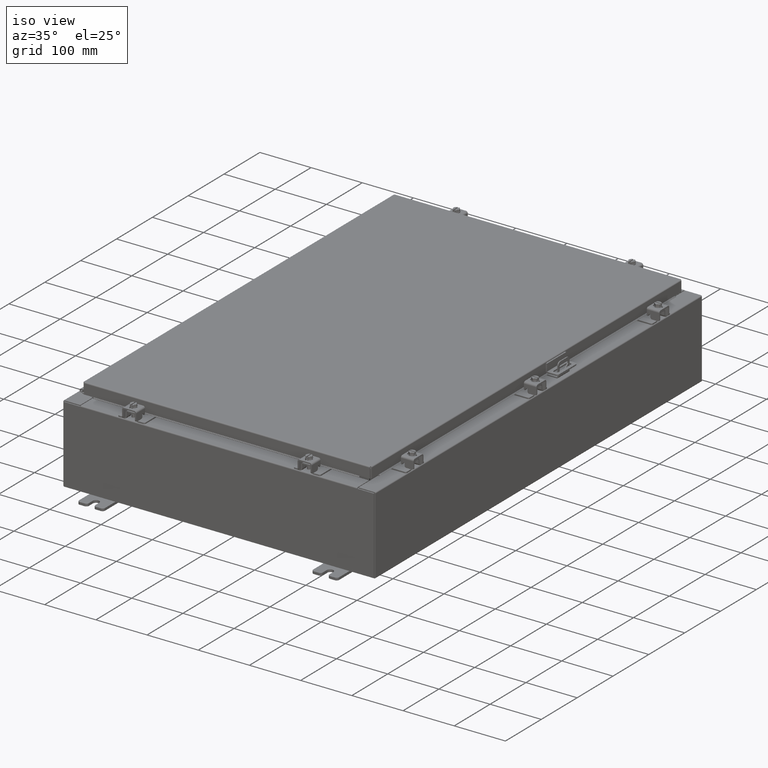
[diagram: clean part render]
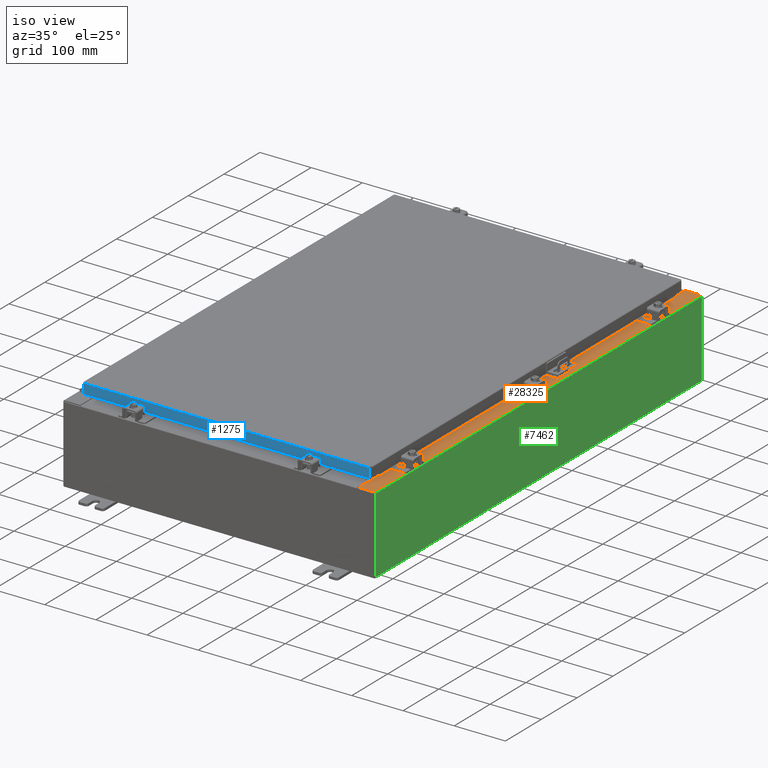
[diagram: same view with three faces highlighted in distinct colors, each labeled with its STEP entity id]
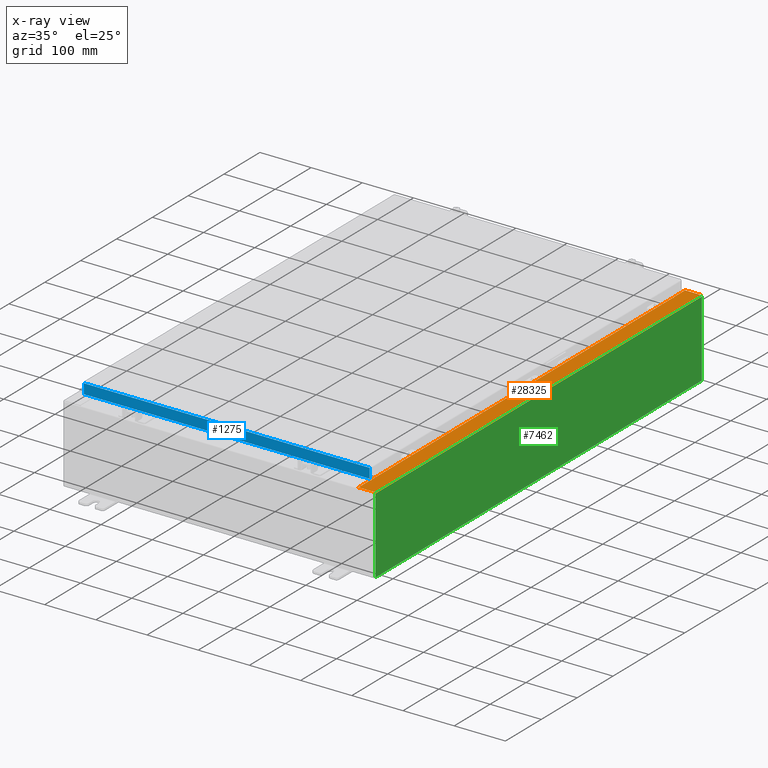
[diagram: x-ray of the same camera — body ghosted, the three highlighted faces saturated]
A machine part, iso view with three faces highlighted in distinct colors.
The next image is the same camera in x-ray (body ghosted, the three faces saturated) — at least one of them is partly hidden behind the body in this view.
Their STEP definitions:

[orange] entity #28325 — the highlighted planar face has unit normal (-0, 0, -1).
#14 = VERTEX_POINT ( 'NONE', #21112 ) ;
#84 = CARTESIAN_POINT ( 'NONE',  ( 11.91230000000002000, -17.92530000000000000, 5.925300000000001800 ) ) ;
#173 = LINE ( 'NONE', #84, #23056 ) ;
#988 = LINE ( 'NONE', #2009, #1274 ) ;
#1274 = VECTOR ( 'NONE', #6174, 39.37007874015748100 ) ;
#1451 = EDGE_CURVE ( 'NONE', #31302, #6827, #988, .T. ) ;
#1862 = CARTESIAN_POINT ( 'NONE',  ( 10.75005000000002100, -16.63110000000000000, 5.925300000000009800 ) ) ;
#2009 = CARTESIAN_POINT ( 'NONE',  ( 4.252457061909019600E-014, 17.92529999999999600, 5.925300000000087100 ) ) ;
#2415 = DIRECTION ( 'NONE',  ( 1.000000000000000000, 4.340572780400098900E-014, 2.170286390200049500E-014 ) ) ;
#2525 = DIRECTION ( 'NONE',  ( 7.132762385546384700E-015, 0.0000000000000000000, 1.000000000000000000 ) ) ;
#2794 = AXIS2_PLACEMENT_3D ( 'NONE', #5562, #38836, #37431 ) ;
#3508 = LINE ( 'NONE', #17470, #34663 ) ;
#3536 = CARTESIAN_POINT ( 'NONE',  ( 10.75005000000002100, 16.63110000000000000, 5.925300000000009800 ) ) ;
#3606 = ORIENTED_EDGE ( 'NONE', *, *, #10852, .F. ) ;
#3826 = VERTEX_POINT ( 'NONE', #30017 ) ;
#3898 = CARTESIAN_POINT ( 'NONE',  ( 10.69970000000002100, 17.92530000000000000, 5.925300000000009800 ) ) ;
#4627 = AXIS2_PLACEMENT_3D ( 'NONE', #26119, #6321, #42211 ) ;
#4864 = CARTESIAN_POINT ( 'NONE',  ( 10.69970000000002100, -17.92530000000000000, 5.925300000000009800 ) ) ;
#5562 = CARTESIAN_POINT ( 'NONE',  ( 10.75005000000002100, 16.61242500000000200, 5.925300000000011600 ) ) ;
#5585 = VERTEX_POINT ( 'NONE', #9043 ) ;
#6174 = DIRECTION ( 'NONE',  ( -1.000000000000000000, 0.0000000000000000000, 7.132762385546384700E-015 ) ) ;
#6321 = DIRECTION ( 'NONE',  ( -7.132762385546384700E-015, 0.0000000000000000000, -1.000000000000000000 ) ) ;
#6827 = VERTEX_POINT ( 'NONE', #3898 ) ;
#7109 = CARTESIAN_POINT ( 'NONE',  ( 10.75005000000002100, -16.59375000000000000, 5.925300000000009800 ) ) ;
#7881 = VERTEX_POINT ( 'NONE', #3536 ) ;
#8476 = CARTESIAN_POINT ( 'NONE',  ( 10.69970000000002100, 0.0000000000000000000, 5.925300000000009800 ) ) ;
#9043 = CARTESIAN_POINT ( 'NONE',  ( 10.75005000000002100, 16.59375000000000000, 5.925300000000009800 ) ) ;
#10047 = DIRECTION ( 'NONE',  ( 0.0000000000000000000, -1.000000000000000000, 0.0000000000000000000 ) ) ;
#10353 = EDGE_CURVE ( 'NONE', #19923, #3826, #21248, .T. ) ;
#10455 = VECTOR ( 'NONE', #26083, 39.37007874015748100 ) ;
#10852 = EDGE_CURVE ( 'NONE', #7881, #41391, #17207, .T. ) ;
#10938 = ORIENTED_EDGE ( 'NONE', *, *, #26375, .T. ) ;
#11516 = FACE_OUTER_BOUND ( 'NONE', #24878, .T. ) ;
#12775 = CARTESIAN_POINT ( 'NONE',  ( 10.69970000000002100, -16.63110000000000400, 5.925300000000009800 ) ) ;
#13056 = ORIENTED_EDGE ( 'NONE', *, *, #1451, .T. ) ;
#13144 = CARTESIAN_POINT ( 'NONE',  ( 10.69970000000002100, 16.63110000000000000, 5.925300000000009800 ) ) ;
#13546 = VERTEX_POINT ( 'NONE', #1862 ) ;
#14253 = ORIENTED_EDGE ( 'NONE', *, *, #28824, .F. ) ;
#15281 = VECTOR ( 'NONE', #10047, 39.37007874015748100 ) ;
#16649 = VECTOR ( 'NONE', #29882, 39.37007874015748100 ) ;
#17207 = LINE ( 'NONE', #19058, #33252 ) ;
#17470 = CARTESIAN_POINT ( 'NONE',  ( 1.056034422168157600E-014, -17.92529999999998200, 5.925300000000087100 ) ) ;
#17621 = DIRECTION ( 'NONE',  ( 1.000000000000000000, -1.783190596386596200E-015, -7.132762385546384700E-015 ) ) ;
#18190 = DIRECTION ( 'NONE',  ( -0.0000000000000000000, 1.000000000000000000, -0.0000000000000000000 ) ) ;
#19058 = CARTESIAN_POINT ( 'NONE',  ( 10.75005000000002100, 16.63110000000000000, 5.925300000000011600 ) ) ;
#19923 = VERTEX_POINT ( 'NONE', #7109 ) ;
#19953 = LINE ( 'NONE', #23351, #28497 ) ;
#20561 = CARTESIAN_POINT ( 'NONE',  ( 10.69970000000002100, -16.63110000000000400, 5.925300000000009800 ) ) ;
#21112 = CARTESIAN_POINT ( 'NONE',  ( 11.91230000000002000, -17.92530000000000000, 5.925300000000001800 ) ) ;
#21248 = LINE ( 'NONE', #30760, #16649 ) ;
#22029 = CARTESIAN_POINT ( 'NONE',  ( 10.75005000000002100, -16.61242500000000200, 5.925300000000011600 ) ) ;
#22482 = VERTEX_POINT ( 'NONE', #40659 ) ;
#22658 = DIRECTION ( 'NONE',  ( -0.0000000000000000000, -1.000000000000000000, -0.0000000000000000000 ) ) ;
#23056 = VECTOR ( 'NONE', #22658, 39.37007874015748100 ) ;
#23351 = CARTESIAN_POINT ( 'NONE',  ( 10.71270000000002100, -16.59375000000000000, 5.925300000000011600 ) ) ;
#23931 = LINE ( 'NONE', #36133, #15281 ) ;
#24760 = VECTOR ( 'NONE', #39413, 39.37007874015748100 ) ;
#24878 = EDGE_LOOP ( 'NONE', ( #14253, #38322, #10938, #42472, #13056, #40318, #3606, #33313, #37401, #28915, #32154, #40146 ) ) ;
#25225 = VECTOR ( 'NONE', #2415, 39.37007874015748100 ) ;
#25366 = DIRECTION ( 'NONE',  ( 1.000000000000000000, 0.0000000000000000000, 0.0000000000000000000 ) ) ;
#25517 = EDGE_CURVE ( 'NONE', #3826, #22482, #19953, .T. ) ;
#25686 = VERTEX_POINT ( 'NONE', #4864 ) ;
#25769 = EDGE_CURVE ( 'NONE', #5585, #7881, #34861, .T. ) ;
#26083 = DIRECTION ( 'NONE',  ( 1.000000000000000000, 0.0000000000000000000, 0.0000000000000000000 ) ) ;
#26119 = CARTESIAN_POINT ( 'NONE',  ( 4.252457061909019600E-014, 0.0000000000000000000, 5.925300000000087100 ) ) ;
#26375 = EDGE_CURVE ( 'NONE', #25686, #14, #3508, .T. ) ;
#27836 = LINE ( 'NONE', #29464, #10455 ) ;
#28325 = ADVANCED_FACE ( 'NONE', ( #11516 ), #34238, .F. ) ;
#28381 = LINE ( 'NONE', #12775, #25225 ) ;
#28497 = VECTOR ( 'NONE', #18190, 39.37007874015748100 ) ;
#28824 = EDGE_CURVE ( 'NONE', #36249, #13546, #28381, .T. ) ;
#28915 = ORIENTED_EDGE ( 'NONE', *, *, #25517, .F. ) ;
#29464 = CARTESIAN_POINT ( 'NONE',  ( 10.71270000000002100, 16.59375000000000000, 5.925300000000011600 ) ) ;
#29882 = DIRECTION ( 'NONE',  ( -1.000000000000000000, 0.0000000000000000000, 0.0000000000000000000 ) ) ;
#30017 = CARTESIAN_POINT ( 'NONE',  ( 10.71270000000002100, -16.59375000000000000, 5.925300000000011600 ) ) ;
#30760 = CARTESIAN_POINT ( 'NONE',  ( 10.75005000000002100, -16.59375000000000000, 5.925300000000011600 ) ) ;
#31302 = VERTEX_POINT ( 'NONE', #33697 ) ;
#32102 = EDGE_CURVE ( 'NONE', #6827, #41391, #42498, .T. ) ;
#32154 = ORIENTED_EDGE ( 'NONE', *, *, #10353, .F. ) ;
#33252 = VECTOR ( 'NONE', #39257, 39.37007874015748100 ) ;
#33313 = ORIENTED_EDGE ( 'NONE', *, *, #25769, .F. ) ;
#33675 = EDGE_CURVE ( 'NONE', #31302, #14, #173, .T. ) ;
#33697 = CARTESIAN_POINT ( 'NONE',  ( 11.91230000000002000, 17.92530000000000000, 5.925300000000001800 ) ) ;
#34238 = PLANE ( 'NONE',  #4627 ) ;
#34663 = VECTOR ( 'NONE', #17621, 39.37007874015748100 ) ;
#34861 = CIRCLE ( 'NONE', #2794, 0.01867499999999949400 ) ;
#36133 = CARTESIAN_POINT ( 'NONE',  ( 10.69970000000002100, 0.0000000000000000000, 5.925300000000009800 ) ) ;
#36160 = EDGE_CURVE ( 'NONE', #22482, #5585, #27836, .T. ) ;
#36249 = VERTEX_POINT ( 'NONE', #20561 ) ;
#37401 = ORIENTED_EDGE ( 'NONE', *, *, #36160, .F. ) ;
#37431 = DIRECTION ( 'NONE',  ( 1.000000000000000000, 0.0000000000000000000, 0.0000000000000000000 ) ) ;
#37528 = CIRCLE ( 'NONE', #41452, 0.01867499999999949400 ) ;
#37529 = EDGE_CURVE ( 'NONE', #13546, #19923, #37528, .T. ) ;
#38322 = ORIENTED_EDGE ( 'NONE', *, *, #39545, .T. ) ;
#38836 = DIRECTION ( 'NONE',  ( 7.132762385546384700E-015, 0.0000000000000000000, 1.000000000000000000 ) ) ;
#39257 = DIRECTION ( 'NONE',  ( -1.000000000000000000, 4.340572780400098900E-014, -2.170286390200049500E-014 ) ) ;
#39413 = DIRECTION ( 'NONE',  ( 0.0000000000000000000, -1.000000000000000000, 0.0000000000000000000 ) ) ;
#39545 = EDGE_CURVE ( 'NONE', #36249, #25686, #23931, .T. ) ;
#40146 = ORIENTED_EDGE ( 'NONE', *, *, #37529, .F. ) ;
#40318 = ORIENTED_EDGE ( 'NONE', *, *, #32102, .T. ) ;
#40659 = CARTESIAN_POINT ( 'NONE',  ( 10.71270000000002100, 16.59375000000000000, 5.925300000000011600 ) ) ;
#41391 = VERTEX_POINT ( 'NONE', #13144 ) ;
#41452 = AXIS2_PLACEMENT_3D ( 'NONE', #22029, #2525, #25366 ) ;
#42211 = DIRECTION ( 'NONE',  ( -1.000000000000000000, 0.0000000000000000000, 7.132762385546384700E-015 ) ) ;
#42472 = ORIENTED_EDGE ( 'NONE', *, *, #33675, .F. ) ;
#42498 = LINE ( 'NONE', #8476, #24760 ) ;

[blue] entity #1275 — the highlighted planar face has unit normal (-0, 1, -0).
#831 = CARTESIAN_POINT ( 'NONE',  ( 10.23915786437626200, -17.09399999999999400, -0.8500000000000000900 ) ) ;
#1275 = ADVANCED_FACE ( 'NONE', ( #37665 ), #4441, .F. ) ;
#1754 = CARTESIAN_POINT ( 'NONE',  ( 5.941356432273445000E-030, -17.09399999999999800, 4.844676449176230100E-014 ) ) ;
#2397 = DIRECTION ( 'NONE',  ( -3.475696988576954900E-031, 1.000000000000000000, -2.818880942772360500E-015 ) ) ;
#2934 = DIRECTION ( 'NONE',  ( -0.0000000000000000000, -2.818880942772360500E-015, -1.000000000000000000 ) ) ;
#4409 = DIRECTION ( 'NONE',  ( 0.0000000000000000000, 2.818880942772360500E-015, 1.000000000000000000 ) ) ;
#4441 = PLANE ( 'NONE',  #17480 ) ;
#5495 = EDGE_CURVE ( 'NONE', #41880, #19485, #34933, .T. ) ;
#5600 = EDGE_LOOP ( 'NONE', ( #28810, #32571, #30044, #10011, #40960, #38441 ) ) ;
#6814 = LINE ( 'NONE', #32478, #29892 ) ;
#7679 = LINE ( 'NONE', #27740, #15286 ) ;
#8140 = VERTEX_POINT ( 'NONE', #23566 ) ;
#10011 = ORIENTED_EDGE ( 'NONE', *, *, #22083, .F. ) ;
#13762 = DIRECTION ( 'NONE',  ( 1.000000000000000000, 6.951393977153911800E-032, -9.864047639156036200E-017 ) ) ;
#14039 = CARTESIAN_POINT ( 'NONE',  ( 11.07799999999999600, -17.09399999999999800, -0.08770000000000007000 ) ) ;
#15127 = CARTESIAN_POINT ( 'NONE',  ( 10.98915786437626500, -17.09399999999999800, -0.8499999999999996400 ) ) ;
#15286 = VECTOR ( 'NONE', #31050, 39.37007874015748100 ) ;
#15950 = CARTESIAN_POINT ( 'NONE',  ( -10.23915786437627100, -17.09399999999999400, -0.8500000000000000900 ) ) ;
#17340 = LINE ( 'NONE', #34667, #38132 ) ;
#17480 = AXIS2_PLACEMENT_3D ( 'NONE', #1754, #2397, #4409 ) ;
#19485 = VERTEX_POINT ( 'NONE', #29485 ) ;
#21628 = EDGE_CURVE ( 'NONE', #41880, #8140, #38134, .T. ) ;
#21929 = VERTEX_POINT ( 'NONE', #15127 ) ;
#22083 = EDGE_CURVE ( 'NONE', #30643, #29852, #37613, .T. ) ;
#22280 = CARTESIAN_POINT ( 'NONE',  ( -10.98915786437627200, -17.09399999999999800, -0.08769999999999787700 ) ) ;
#23364 = VECTOR ( 'NONE', #30892, 39.37007874015748100 ) ;
#23566 = CARTESIAN_POINT ( 'NONE',  ( -10.98915786437627200, -17.09399999999999800, -0.8499999999999969800 ) ) ;
#24595 = DIRECTION ( 'NONE',  ( -1.000000000000000000, 0.0000000000000000000, 0.0000000000000000000 ) ) ;
#25587 = EDGE_CURVE ( 'NONE', #29852, #8140, #17340, .T. ) ;
#27728 = CARTESIAN_POINT ( 'NONE',  ( -10.98915786437626900, -17.09399999999999800, 4.844676449176230100E-014 ) ) ;
#27740 = CARTESIAN_POINT ( 'NONE',  ( 11.07799999999999600, -17.09399999999999800, -0.8499999999999996400 ) ) ;
#28810 = ORIENTED_EDGE ( 'NONE', *, *, #5495, .F. ) ;
#29485 = CARTESIAN_POINT ( 'NONE',  ( 10.98915786437626700, -17.09399999999999800, -0.08769999999999897300 ) ) ;
#29852 = VERTEX_POINT ( 'NONE', #15950 ) ;
#29892 = VECTOR ( 'NONE', #2934, 39.37007874015748100 ) ;
#30044 = ORIENTED_EDGE ( 'NONE', *, *, #25587, .F. ) ;
#30643 = VERTEX_POINT ( 'NONE', #39921 ) ;
#30892 = DIRECTION ( 'NONE',  ( 0.0000000000000000000, -2.818880942772360500E-015, -1.000000000000000000 ) ) ;
#31050 = DIRECTION ( 'NONE',  ( -1.000000000000000000, 4.379057701015053300E-047, 1.233005954894504400E-016 ) ) ;
#32478 = CARTESIAN_POINT ( 'NONE',  ( 10.98915786437626500, -17.09399999999999800, -0.07469999999999978000 ) ) ;
#32571 = ORIENTED_EDGE ( 'NONE', *, *, #21628, .T. ) ;
#32976 = VECTOR ( 'NONE', #24595, 39.37007874015748100 ) ;
#33966 = DIRECTION ( 'NONE',  ( -1.000000000000000000, 4.379057701015053300E-047, 1.233005954894504400E-016 ) ) ;
#34667 = CARTESIAN_POINT ( 'NONE',  ( 11.07799999999999600, -17.09399999999999800, -0.8499999999999996400 ) ) ;
#34933 = LINE ( 'NONE', #14039, #41562 ) ;
#36094 = EDGE_CURVE ( 'NONE', #19485, #21929, #6814, .T. ) ;
#37613 = LINE ( 'NONE', #831, #32976 ) ;
#37665 = FACE_OUTER_BOUND ( 'NONE', #5600, .T. ) ;
#37887 = EDGE_CURVE ( 'NONE', #21929, #30643, #7679, .T. ) ;
#38132 = VECTOR ( 'NONE', #33966, 39.37007874015748100 ) ;
#38134 = LINE ( 'NONE', #27728, #23364 ) ;
#38441 = ORIENTED_EDGE ( 'NONE', *, *, #36094, .F. ) ;
#39921 = CARTESIAN_POINT ( 'NONE',  ( 10.23915786437626200, -17.09399999999999400, -0.8500000000000000900 ) ) ;
#40960 = ORIENTED_EDGE ( 'NONE', *, *, #37887, .F. ) ;
#41562 = VECTOR ( 'NONE', #13762, 39.37007874015748100 ) ;
#41880 = VERTEX_POINT ( 'NONE', #22280 ) ;

[green] entity #7462 — the highlighted planar face has unit normal (-1, 0, 0).
#1237 = ORIENTED_EDGE ( 'NONE', *, *, #26262, .T. ) ;
#1486 = VECTOR ( 'NONE', #26997, 39.37007874015748100 ) ;
#3172 = PLANE ( 'NONE',  #16581 ) ;
#3631 = VECTOR ( 'NONE', #19089, 39.37007874015748100 ) ;
#4779 = CARTESIAN_POINT ( 'NONE',  ( 12.00000000000000200, 17.92529999999999600, -4.009536492811464800E-014 ) ) ;
#5945 = VERTEX_POINT ( 'NONE', #20748 ) ;
#7419 = CARTESIAN_POINT ( 'NONE',  ( 12.00000000000002100, 17.92530000000000000, 5.837600000000001000 ) ) ;
#7462 = ADVANCED_FACE ( 'NONE', ( #9704 ), #3172, .F. ) ;
#8236 = DIRECTION ( 'NONE',  ( 3.319545939341922800E-015, 0.0000000000000000000, 1.000000000000000000 ) ) ;
#8670 = CARTESIAN_POINT ( 'NONE',  ( 12.00000000000000200, 17.92529999999999600, 0.01300000000000205000 ) ) ;
#9704 = FACE_OUTER_BOUND ( 'NONE', #20433, .T. ) ;
#10290 = DIRECTION ( 'NONE',  ( -1.000000000000000000, 0.0000000000000000000, 3.319545939341922000E-015 ) ) ;
#10410 = LINE ( 'NONE', #28972, #26706 ) ;
#12194 = CARTESIAN_POINT ( 'NONE',  ( 12.00000000000000200, -17.92530000000000400, 0.01300000000000095200 ) ) ;
#12589 = VERTEX_POINT ( 'NONE', #12194 ) ;
#15148 = LINE ( 'NONE', #4779, #31648 ) ;
#16257 = EDGE_CURVE ( 'NONE', #22914, #12589, #10410, .T. ) ;
#16581 = AXIS2_PLACEMENT_3D ( 'NONE', #31148, #10290, #38128 ) ;
#16830 = ORIENTED_EDGE ( 'NONE', *, *, #40878, .T. ) ;
#19089 = DIRECTION ( 'NONE',  ( -3.319545939341922800E-015, 0.0000000000000000000, -1.000000000000000000 ) ) ;
#20433 = EDGE_LOOP ( 'NONE', ( #37246, #1237, #39339, #16830 ) ) ;
#20748 = CARTESIAN_POINT ( 'NONE',  ( 12.00000000000002100, 17.92530000000000000, 5.837600000000001000 ) ) ;
#22914 = VERTEX_POINT ( 'NONE', #8670 ) ;
#23052 = CARTESIAN_POINT ( 'NONE',  ( 12.00000000000002100, -17.92530000000000000, 5.837600000000001000 ) ) ;
#26262 = EDGE_CURVE ( 'NONE', #35024, #12589, #30785, .T. ) ;
#26522 = LINE ( 'NONE', #7419, #1486 ) ;
#26706 = VECTOR ( 'NONE', #31700, 39.37007874015748100 ) ;
#26997 = DIRECTION ( 'NONE',  ( -0.0000000000000000000, -1.000000000000000000, -0.0000000000000000000 ) ) ;
#28972 = CARTESIAN_POINT ( 'NONE',  ( 12.00000000000000200, -17.92530000000000400, 0.01299999999999986400 ) ) ;
#29791 = CARTESIAN_POINT ( 'NONE',  ( 12.00000000000000200, -17.92530000000000400, -4.009536492811464800E-014 ) ) ;
#30785 = LINE ( 'NONE', #29791, #3631 ) ;
#31148 = CARTESIAN_POINT ( 'NONE',  ( 12.00000000000000200, 0.0000000000000000000, -4.009536492811464800E-014 ) ) ;
#31648 = VECTOR ( 'NONE', #8236, 39.37007874015748100 ) ;
#31700 = DIRECTION ( 'NONE',  ( -2.023619111371655800E-031, -1.000000000000000000, -6.096072018129156600E-017 ) ) ;
#35024 = VERTEX_POINT ( 'NONE', #23052 ) ;
#37246 = ORIENTED_EDGE ( 'NONE', *, *, #40117, .T. ) ;
#38128 = DIRECTION ( 'NONE',  ( 3.319545939341922000E-015, 0.0000000000000000000, 1.000000000000000000 ) ) ;
#39339 = ORIENTED_EDGE ( 'NONE', *, *, #16257, .F. ) ;
#40117 = EDGE_CURVE ( 'NONE', #5945, #35024, #26522, .T. ) ;
#40878 = EDGE_CURVE ( 'NONE', #22914, #5945, #15148, .T. ) ;